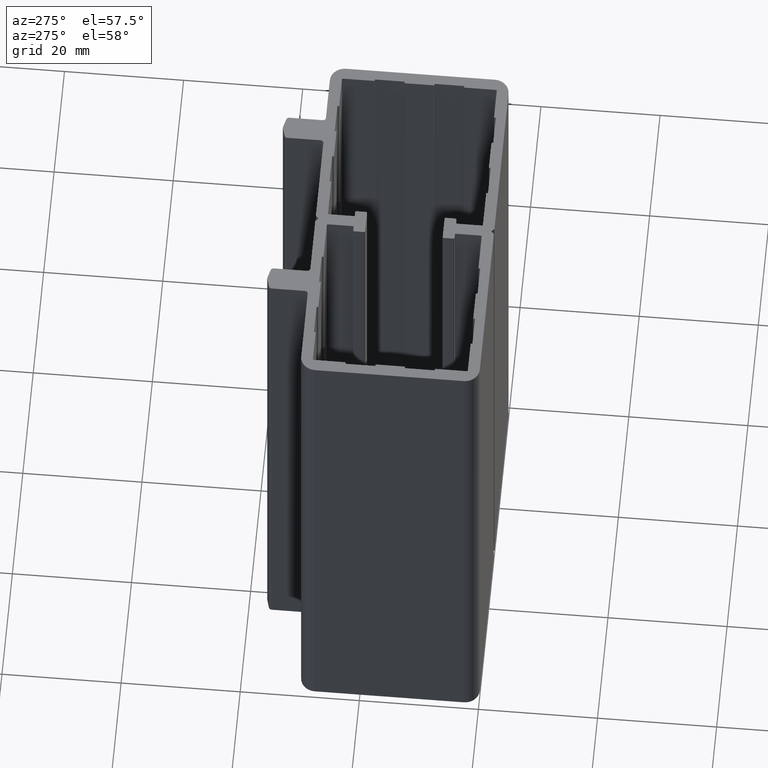
[diagram: clean part render]
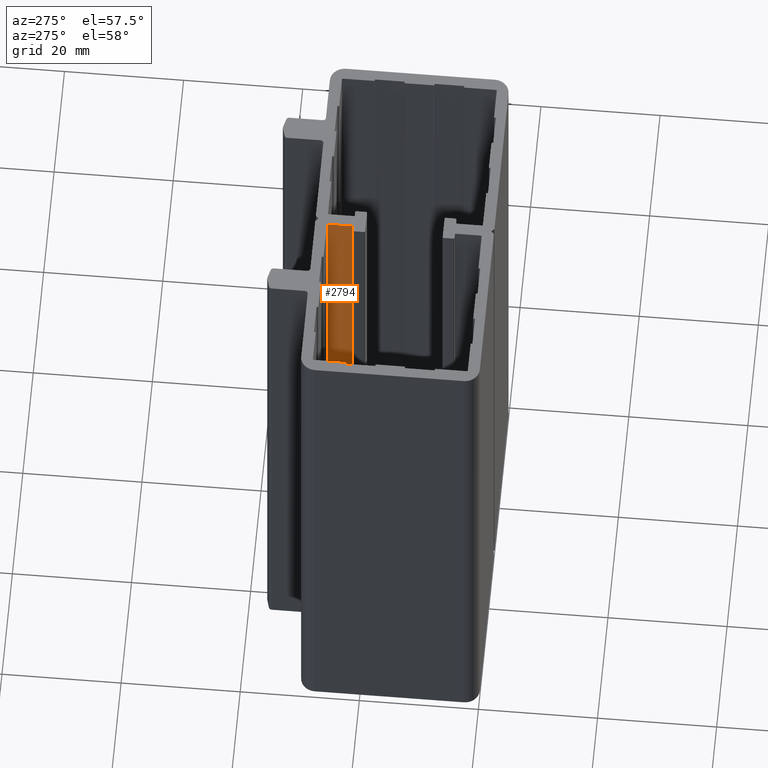
[diagram: same view with one face highlighted and labeled with its STEP entity id]
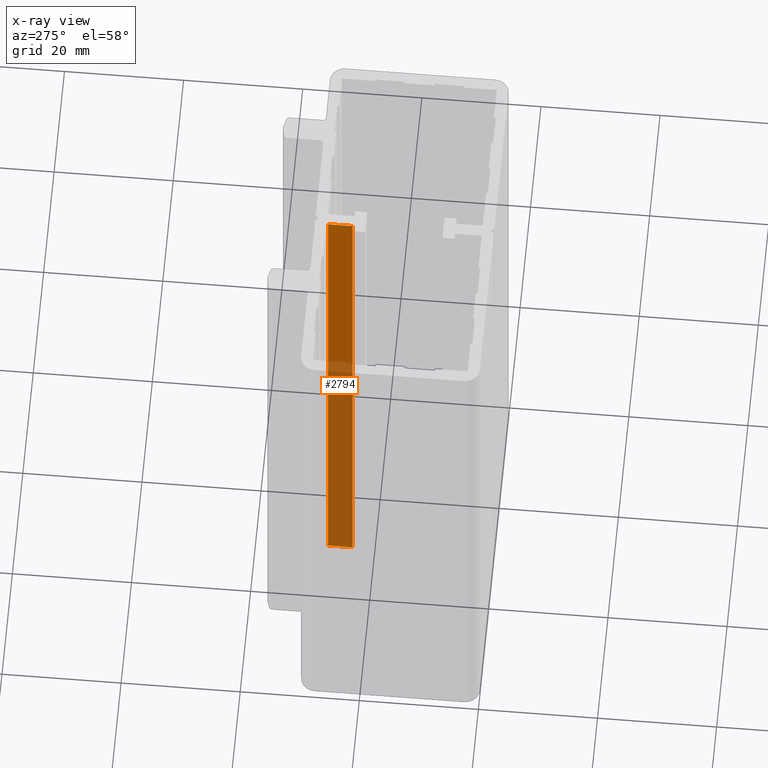
[diagram: x-ray of the same camera — body ghosted, the highlighted face saturated]
A machine part, auxiliary view. The second image highlights one B-rep face of the part: STEP entity #2794.
The next image is the same camera in x-ray: the body ghosted, the highlighted face saturated — about 57% of this face is hidden behind the body in this view.
In plain terms, the highlighted planar face has unit normal (-1, 0, 0).
Its self-contained STEP definition (entity closure, byte-faithful):
#944=CARTESIAN_POINT('',(29.011985819759481,27.780890048491187,100.0));
#945=VERTEX_POINT('',#944);
#953=CARTESIAN_POINT('',(29.011985819759513,23.680890048486226,100.0));
#954=VERTEX_POINT('',#953);
#955=CARTESIAN_POINT('',(29.011985819759513,23.680890048486226,100.0));
#956=DIRECTION('',(0.0,1.0,0.0));
#957=VECTOR('',#956,4.100000000004961);
#958=LINE('',#955,#957);
#959=EDGE_CURVE('',#954,#945,#958,.T.);
#1385=CARTESIAN_POINT('',(29.011985819759513,23.680890048486226,0.0));
#1386=VERTEX_POINT('',#1385);
#1394=CARTESIAN_POINT('',(29.011985819759481,27.780890048491187,0.0));
#1395=VERTEX_POINT('',#1394);
#1396=CARTESIAN_POINT('',(29.011985819759513,23.680890048486226,0.0));
#1397=DIRECTION('',(0.0,1.0,0.0));
#1398=VECTOR('',#1397,4.100000000004961);
#1399=LINE('',#1396,#1398);
#1400=EDGE_CURVE('',#1386,#1395,#1399,.T.);
#2769=CARTESIAN_POINT('',(29.011985819759513,23.680890048486226,100.0));
#2770=DIRECTION('',(0.0,0.0,-1.0));
#2771=VECTOR('',#2770,100.0);
#2772=LINE('',#2769,#2771);
#2773=EDGE_CURVE('',#954,#1386,#2772,.T.);
#2778=CARTESIAN_POINT('',(29.011985819759513,27.985890048491434,-5.0));
#2779=DIRECTION('',(-1.0,0.0,0.0));
#2780=DIRECTION('',(0.0,-1.0,0.0));
#2781=AXIS2_PLACEMENT_3D('',#2778,#2779,#2780);
#2782=PLANE('',#2781);
#2783=ORIENTED_EDGE('',*,*,#1400,.F.);
#2784=ORIENTED_EDGE('',*,*,#2773,.F.);
#2785=ORIENTED_EDGE('',*,*,#959,.T.);
#2786=CARTESIAN_POINT('',(29.011985819759481,27.780890048491187,100.0));
#2787=DIRECTION('',(0.0,0.0,-1.0));
#2788=VECTOR('',#2787,100.0);
#2789=LINE('',#2786,#2788);
#2790=EDGE_CURVE('',#945,#1395,#2789,.T.);
#2791=ORIENTED_EDGE('',*,*,#2790,.T.);
#2792=EDGE_LOOP('',(#2783,#2784,#2785,#2791));
#2793=FACE_OUTER_BOUND('',#2792,.T.);
#2794=ADVANCED_FACE('',(#2793),#2782,.T.);